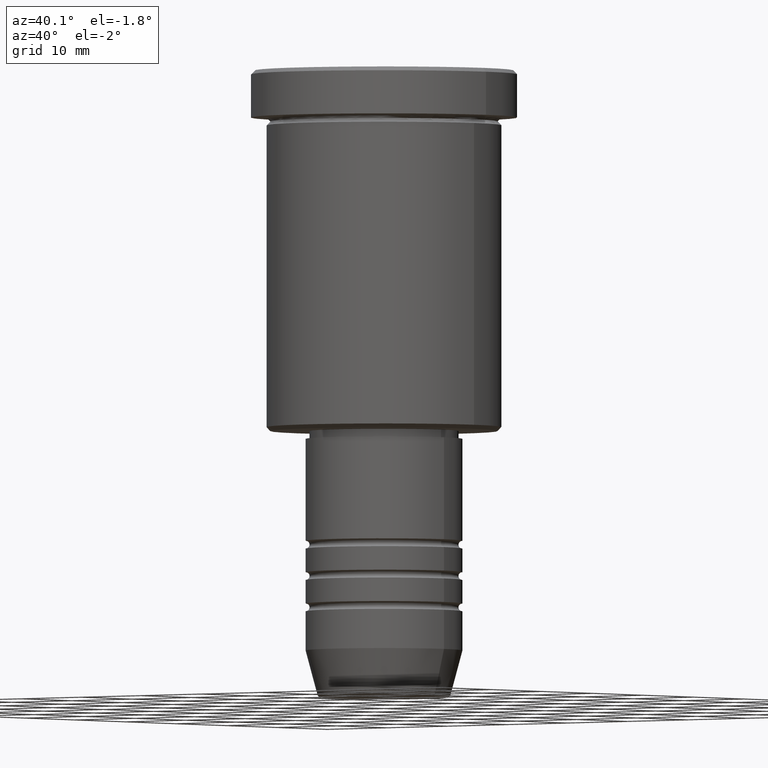
[diagram: clean part render]
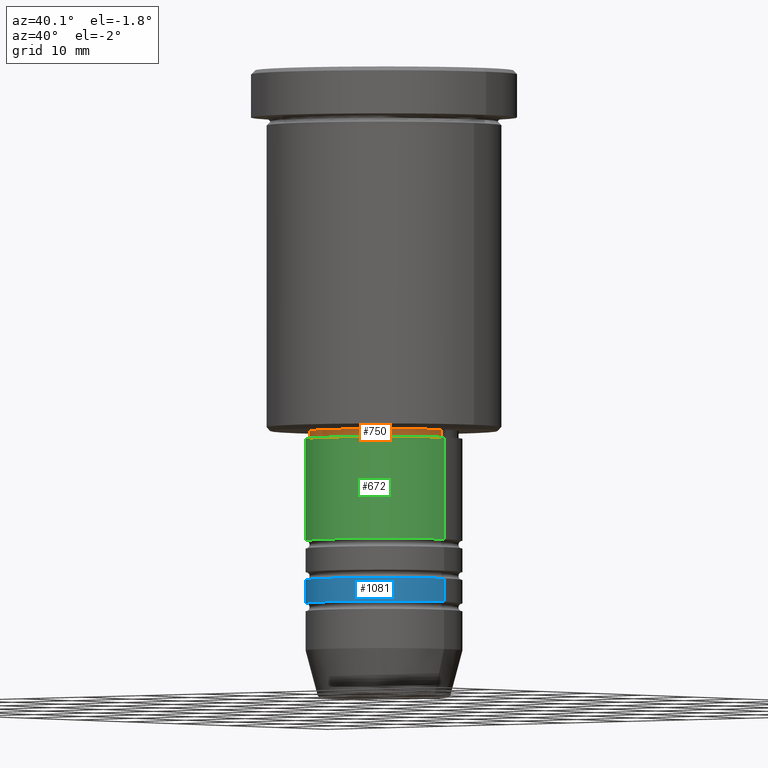
[diagram: same view with three faces highlighted in distinct colors, each labeled with its STEP entity id]
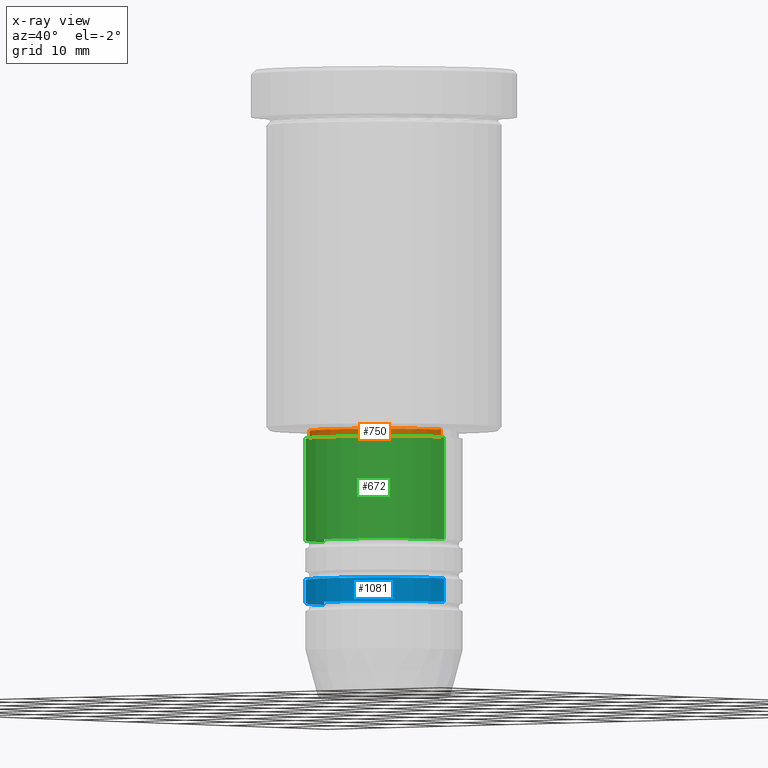
[diagram: x-ray of the same camera — body ghosted, the three highlighted faces saturated]
A machine part, auxiliary view with three faces highlighted in distinct colors.
The next image is the same camera in x-ray (body ghosted, the three faces saturated) — at least one of them is partly hidden behind the body in this view.
Their STEP definitions:

[orange] entity #750 — the highlighted cylindrical surface (partial cylindrical patch) has radius 9.5 mm, axis along (-0, -0, 1).
#11 = ORIENTED_EDGE ( 'NONE', *, *, #608, .T. ) ;
#28 = FACE_OUTER_BOUND ( 'NONE', #173, .T. ) ;
#46 = ORIENTED_EDGE ( 'NONE', *, *, #830, .T. ) ;
#108 = CARTESIAN_POINT ( 'NONE',  ( 0.000000000000000000, 0.000000000000000000, -47.00000000000000000 ) ) ;
#141 = DIRECTION ( 'NONE',  ( -0.000000000000000000, -0.000000000000000000, 1.000000000000000000 ) ) ;
#149 = ORIENTED_EDGE ( 'NONE', *, *, #856, .F. ) ;
#165 = LINE ( 'NONE', #172, #954 ) ;
#172 = CARTESIAN_POINT ( 'NONE',  ( 9.500000000000001776, 0.000000000000000000, 0.000000000000000000 ) ) ;
#173 = EDGE_LOOP ( 'NONE', ( #149, #11, #46, #1139 ) ) ;
#204 = DIRECTION ( 'NONE',  ( -0.000000000000000000, -0.000000000000000000, 1.000000000000000000 ) ) ;
#300 = CARTESIAN_POINT ( 'NONE',  ( 0.000000000000000000, 0.000000000000000000, 0.000000000000000000 ) ) ;
#317 = CARTESIAN_POINT ( 'NONE',  ( 9.500000000000000000, 0.000000000000000000, -47.00000000000000000 ) ) ;
#361 = LINE ( 'NONE', #913, #1025 ) ;
#365 = DIRECTION ( 'NONE',  ( -0.000000000000000000, -0.000000000000000000, 1.000000000000000000 ) ) ;
#370 = CIRCLE ( 'NONE', #671, 9.500000000000001776 ) ;
#497 = CARTESIAN_POINT ( 'NONE',  ( -9.500000000000001776, 1.163414459189985682E-15, -46.00000000000000000 ) ) ;
#589 = CYLINDRICAL_SURFACE ( 'NONE', #937, 9.500000000000001776 ) ;
#608 = EDGE_CURVE ( 'NONE', #705, #743, #835, .T. ) ;
#632 = DIRECTION ( 'NONE',  ( 1.000000000000000000, 0.000000000000000000, 0.000000000000000000 ) ) ;
#658 = DIRECTION ( 'NONE',  ( 1.000000000000000000, 0.000000000000000000, 0.000000000000000000 ) ) ;
#671 = AXIS2_PLACEMENT_3D ( 'NONE', #1162, #730, #632 ) ;
#704 = VERTEX_POINT ( 'NONE', #497 ) ;
#705 = VERTEX_POINT ( 'NONE', #936 ) ;
#730 = DIRECTION ( 'NONE',  ( -0.000000000000000000, -0.000000000000000000, 1.000000000000000000 ) ) ;
#743 = VERTEX_POINT ( 'NONE', #317 ) ;
#750 = ADVANCED_FACE ( 'NONE', ( #28 ), #589, .T. ) ;
#762 = CARTESIAN_POINT ( 'NONE',  ( 9.500000000000001776, 0.000000000000000000, -46.00000000000000000 ) ) ;
#830 = EDGE_CURVE ( 'NONE', #743, #1085, #165, .T. ) ;
#835 = CIRCLE ( 'NONE', #1121, 9.500000000000000000 ) ;
#848 = DIRECTION ( 'NONE',  ( 1.000000000000000000, 0.000000000000000000, 0.000000000000000000 ) ) ;
#856 = EDGE_CURVE ( 'NONE', #705, #704, #361, .T. ) ;
#896 = EDGE_CURVE ( 'NONE', #704, #1085, #370, .T. ) ;
#913 = CARTESIAN_POINT ( 'NONE',  ( -9.500000000000001776, 1.163414459189985682E-15, 0.000000000000000000 ) ) ;
#936 = CARTESIAN_POINT ( 'NONE',  ( -9.500000000000000000, 1.163414459189985485E-15, -47.00000000000000000 ) ) ;
#937 = AXIS2_PLACEMENT_3D ( 'NONE', #300, #141, #848 ) ;
#954 = VECTOR ( 'NONE', #1070, 1000.000000000000000 ) ;
#1025 = VECTOR ( 'NONE', #365, 1000.000000000000000 ) ;
#1070 = DIRECTION ( 'NONE',  ( -0.000000000000000000, -0.000000000000000000, 1.000000000000000000 ) ) ;
#1085 = VERTEX_POINT ( 'NONE', #762 ) ;
#1121 = AXIS2_PLACEMENT_3D ( 'NONE', #108, #204, #658 ) ;
#1139 = ORIENTED_EDGE ( 'NONE', *, *, #896, .F. ) ;
#1162 = CARTESIAN_POINT ( 'NONE',  ( 0.000000000000000000, 0.000000000000000000, -46.00000000000000000 ) ) ;

[blue] entity #1081 — the highlighted cylindrical surface (partial cylindrical patch) has radius 10 mm, axis along (-0, -0, 1).
#43 = AXIS2_PLACEMENT_3D ( 'NONE', #872, #679, #45 ) ;
#45 = DIRECTION ( 'NONE',  ( 1.000000000000000000, 0.000000000000000000, 0.000000000000000000 ) ) ;
#56 = VERTEX_POINT ( 'NONE', #731 ) ;
#74 = EDGE_CURVE ( 'NONE', #56, #326, #274, .T. ) ;
#94 = CARTESIAN_POINT ( 'NONE',  ( 0.000000000000000000, 0.000000000000000000, -65.00000000000000000 ) ) ;
#105 = EDGE_CURVE ( 'NONE', #910, #367, #366, .T. ) ;
#158 = CARTESIAN_POINT ( 'NONE',  ( 0.000000000000000000, 0.000000000000000000, -68.00000000000000000 ) ) ;
#190 = ORIENTED_EDGE ( 'NONE', *, *, #1073, .F. ) ;
#228 = AXIS2_PLACEMENT_3D ( 'NONE', #158, #627, #884 ) ;
#247 = EDGE_CURVE ( 'NONE', #910, #56, #423, .T. ) ;
#274 = LINE ( 'NONE', #812, #1150 ) ;
#326 = VERTEX_POINT ( 'NONE', #719 ) ;
#366 = LINE ( 'NONE', #1091, #854 ) ;
#367 = VERTEX_POINT ( 'NONE', #387 ) ;
#387 = CARTESIAN_POINT ( 'NONE',  ( -10.00000000000000000, 1.224646799147353256E-15, -65.00000000000000000 ) ) ;
#423 = CIRCLE ( 'NONE', #228, 10.00000000000000178 ) ;
#535 = DIRECTION ( 'NONE',  ( -0.000000000000000000, -0.000000000000000000, 1.000000000000000000 ) ) ;
#554 = CARTESIAN_POINT ( 'NONE',  ( -10.00000000000000178, 1.224646799147353454E-15, -68.00000000000000000 ) ) ;
#575 = ORIENTED_EDGE ( 'NONE', *, *, #247, .T. ) ;
#591 = EDGE_LOOP ( 'NONE', ( #611, #575, #926, #190 ) ) ;
#611 = ORIENTED_EDGE ( 'NONE', *, *, #105, .F. ) ;
#627 = DIRECTION ( 'NONE',  ( -0.000000000000000000, -0.000000000000000000, 1.000000000000000000 ) ) ;
#630 = DIRECTION ( 'NONE',  ( -0.000000000000000000, -0.000000000000000000, 1.000000000000000000 ) ) ;
#649 = DIRECTION ( 'NONE',  ( -0.000000000000000000, -0.000000000000000000, 1.000000000000000000 ) ) ;
#674 = AXIS2_PLACEMENT_3D ( 'NONE', #94, #649, #786 ) ;
#679 = DIRECTION ( 'NONE',  ( -0.000000000000000000, -0.000000000000000000, 1.000000000000000000 ) ) ;
#719 = CARTESIAN_POINT ( 'NONE',  ( 10.00000000000000000, 0.000000000000000000, -65.00000000000000000 ) ) ;
#731 = CARTESIAN_POINT ( 'NONE',  ( 10.00000000000000178, 0.000000000000000000, -68.00000000000000000 ) ) ;
#786 = DIRECTION ( 'NONE',  ( 1.000000000000000000, 0.000000000000000000, 0.000000000000000000 ) ) ;
#812 = CARTESIAN_POINT ( 'NONE',  ( 10.00000000000000178, 0.000000000000000000, 0.000000000000000000 ) ) ;
#854 = VECTOR ( 'NONE', #630, 1000.000000000000000 ) ;
#872 = CARTESIAN_POINT ( 'NONE',  ( 0.000000000000000000, 0.000000000000000000, 0.000000000000000000 ) ) ;
#882 = FACE_OUTER_BOUND ( 'NONE', #591, .T. ) ;
#884 = DIRECTION ( 'NONE',  ( 1.000000000000000000, 0.000000000000000000, 0.000000000000000000 ) ) ;
#910 = VERTEX_POINT ( 'NONE', #554 ) ;
#926 = ORIENTED_EDGE ( 'NONE', *, *, #74, .T. ) ;
#1028 = CIRCLE ( 'NONE', #674, 10.00000000000000000 ) ;
#1041 = CYLINDRICAL_SURFACE ( 'NONE', #43, 10.00000000000000178 ) ;
#1073 = EDGE_CURVE ( 'NONE', #367, #326, #1028, .T. ) ;
#1081 = ADVANCED_FACE ( 'NONE', ( #882 ), #1041, .T. ) ;
#1091 = CARTESIAN_POINT ( 'NONE',  ( -10.00000000000000178, 1.224646799147353454E-15, 0.000000000000000000 ) ) ;
#1150 = VECTOR ( 'NONE', #535, 1000.000000000000000 ) ;

[green] entity #672 — the highlighted cylindrical surface (partial cylindrical patch) has radius 10 mm, axis along (-0, -0, 1).
#33 = EDGE_CURVE ( 'NONE', #718, #955, #842, .T. ) ;
#38 = AXIS2_PLACEMENT_3D ( 'NONE', #492, #1019, #576 ) ;
#84 = DIRECTION ( 'NONE',  ( -0.000000000000000000, -0.000000000000000000, 1.000000000000000000 ) ) ;
#175 = CARTESIAN_POINT ( 'NONE',  ( 10.00000000000000178, 0.000000000000000000, -60.00000000000000711 ) ) ;
#208 = CYLINDRICAL_SURFACE ( 'NONE', #38, 10.00000000000000000 ) ;
#215 = CARTESIAN_POINT ( 'NONE',  ( -9.999999999999998224, 1.224646799147353256E-15, -47.00000000000000000 ) ) ;
#223 = CARTESIAN_POINT ( 'NONE',  ( 0.000000000000000000, 0.000000000000000000, -47.00000000000000000 ) ) ;
#231 = DIRECTION ( 'NONE',  ( -0.000000000000000000, -0.000000000000000000, 1.000000000000000000 ) ) ;
#252 = VECTOR ( 'NONE', #639, 1000.000000000000000 ) ;
#270 = CARTESIAN_POINT ( 'NONE',  ( 10.00000000000000000, 0.000000000000000000, 0.000000000000000000 ) ) ;
#277 = CARTESIAN_POINT ( 'NONE',  ( -10.00000000000000000, 1.224646799147353256E-15, 0.000000000000000000 ) ) ;
#283 = LINE ( 'NONE', #277, #376 ) ;
#316 = VERTEX_POINT ( 'NONE', #1149 ) ;
#373 = DIRECTION ( 'NONE',  ( 1.000000000000000000, 0.000000000000000000, 0.000000000000000000 ) ) ;
#376 = VECTOR ( 'NONE', #645, 1000.000000000000000 ) ;
#392 = AXIS2_PLACEMENT_3D ( 'NONE', #798, #84, #373 ) ;
#397 = CARTESIAN_POINT ( 'NONE',  ( -10.00000000000000178, 1.224646799147353454E-15, -60.00000000000000711 ) ) ;
#485 = EDGE_LOOP ( 'NONE', ( #1042, #673, #1111, #818 ) ) ;
#492 = CARTESIAN_POINT ( 'NONE',  ( 0.000000000000000000, 0.000000000000000000, 0.000000000000000000 ) ) ;
#576 = DIRECTION ( 'NONE',  ( 1.000000000000000000, 0.000000000000000000, 0.000000000000000000 ) ) ;
#618 = CIRCLE ( 'NONE', #710, 9.999999999999998224 ) ;
#639 = DIRECTION ( 'NONE',  ( -0.000000000000000000, -0.000000000000000000, 1.000000000000000000 ) ) ;
#645 = DIRECTION ( 'NONE',  ( -0.000000000000000000, -0.000000000000000000, 1.000000000000000000 ) ) ;
#672 = ADVANCED_FACE ( 'NONE', ( #686 ), #208, .T. ) ;
#673 = ORIENTED_EDGE ( 'NONE', *, *, #33, .T. ) ;
#675 = DIRECTION ( 'NONE',  ( 1.000000000000000000, 0.000000000000000000, 0.000000000000000000 ) ) ;
#686 = FACE_OUTER_BOUND ( 'NONE', #485, .T. ) ;
#710 = AXIS2_PLACEMENT_3D ( 'NONE', #223, #231, #675 ) ;
#718 = VERTEX_POINT ( 'NONE', #397 ) ;
#739 = EDGE_CURVE ( 'NONE', #752, #316, #618, .T. ) ;
#752 = VERTEX_POINT ( 'NONE', #215 ) ;
#798 = CARTESIAN_POINT ( 'NONE',  ( 0.000000000000000000, 0.000000000000000000, -60.00000000000000711 ) ) ;
#810 = LINE ( 'NONE', #270, #252 ) ;
#818 = ORIENTED_EDGE ( 'NONE', *, *, #739, .F. ) ;
#842 = CIRCLE ( 'NONE', #392, 10.00000000000000178 ) ;
#955 = VERTEX_POINT ( 'NONE', #175 ) ;
#967 = EDGE_CURVE ( 'NONE', #955, #316, #810, .T. ) ;
#1019 = DIRECTION ( 'NONE',  ( -0.000000000000000000, -0.000000000000000000, 1.000000000000000000 ) ) ;
#1042 = ORIENTED_EDGE ( 'NONE', *, *, #1055, .F. ) ;
#1055 = EDGE_CURVE ( 'NONE', #718, #752, #283, .T. ) ;
#1111 = ORIENTED_EDGE ( 'NONE', *, *, #967, .T. ) ;
#1149 = CARTESIAN_POINT ( 'NONE',  ( 9.999999999999998224, 0.000000000000000000, -47.00000000000000000 ) ) ;